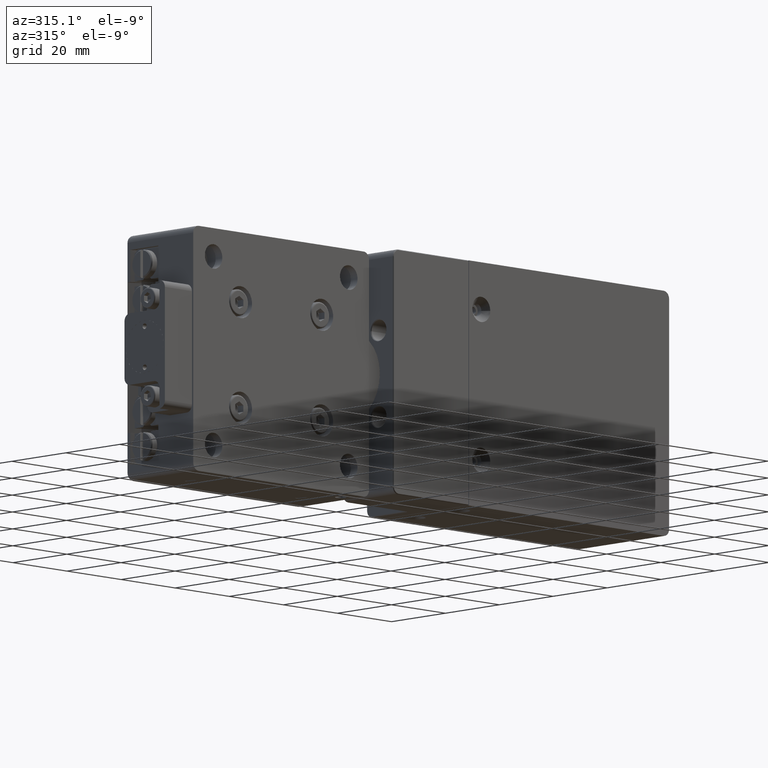
[diagram: clean part render]
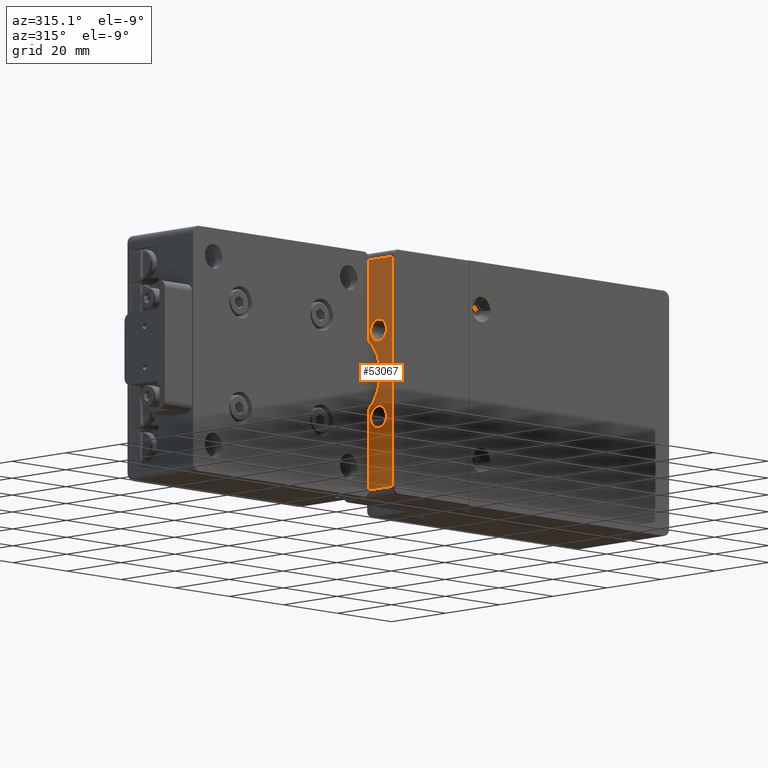
[diagram: same view with one face highlighted and labeled with its STEP entity id]
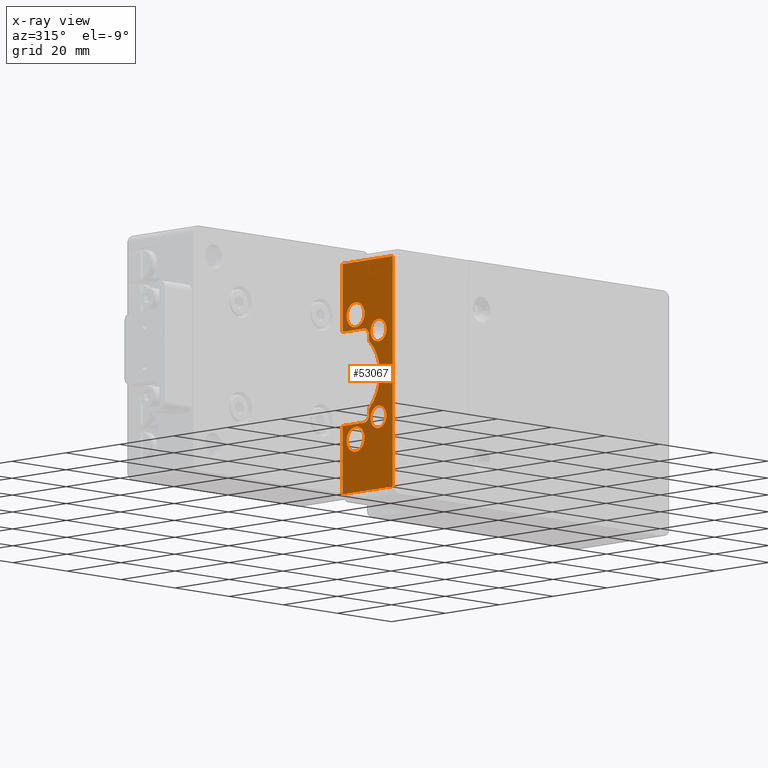
[diagram: x-ray of the same camera — body ghosted, the highlighted face saturated]
A machine part, auxiliary view. The second image highlights one B-rep face of the part: STEP entity #53067.
The next image is the same camera in x-ray: the body ghosted, the highlighted face saturated — about 0% of this face is hidden behind the body in this view.
In plain terms, the highlighted planar face has unit normal (1, 0, 0).
Its self-contained STEP definition (entity closure, byte-faithful):
#567 = AXIS2_PLACEMENT_3D ( 'NONE', #4153, #1064, #790 ) ;
#790 = DIRECTION ( 'NONE',  ( 0.000000000000000000, 1.000000000000000000, 0.000000000000000000 ) ) ;
#900 = ORIENTED_EDGE ( 'NONE', *, *, #53127, .T. ) ;
#1064 = DIRECTION ( 'NONE',  ( 1.000000000000000000, 0.000000000000000000, 0.000000000000000000 ) ) ;
#1322 = EDGE_CURVE ( 'NONE', #7329, #30953, #10742, .T. ) ;
#1376 = VERTEX_POINT ( 'NONE', #53005 ) ;
#1457 = LINE ( 'NONE', #14245, #19453 ) ;
#1556 = DIRECTION ( 'NONE',  ( 1.000000000000000000, 0.000000000000000000, 0.000000000000000000 ) ) ;
#1988 = ORIENTED_EDGE ( 'NONE', *, *, #1322, .T. ) ;
#2143 = LINE ( 'NONE', #6880, #11523 ) ;
#2549 = CARTESIAN_POINT ( 'NONE',  ( -118.1520614493393850, 11.74167847702479861, -12.50000000000000000 ) ) ;
#2590 = CARTESIAN_POINT ( 'NONE',  ( -118.1520614493393850, 0.9416784770247960124, 30.50000000000000000 ) ) ;
#2774 = CARTESIAN_POINT ( 'NONE',  ( -118.1520614493393850, 6.241678477024800387, -11.50000000000000000 ) ) ;
#3097 = ORIENTED_EDGE ( 'NONE', *, *, #11199, .T. ) ;
#3154 = LINE ( 'NONE', #20118, #31832 ) ;
#3672 = EDGE_CURVE ( 'NONE', #34985, #49633, #33072, .T. ) ;
#3777 = DIRECTION ( 'NONE',  ( 0.000000000000000000, 1.000000000000000000, 0.000000000000000000 ) ) ;
#3948 = EDGE_LOOP ( 'NONE', ( #27525, #9566 ) ) ;
#4038 = EDGE_CURVE ( 'NONE', #19085, #49757, #31202, .T. ) ;
#4153 = CARTESIAN_POINT ( 'NONE',  ( -118.1520614493393850, 11.74167847702479861, 10.50000000000000000 ) ) ;
#4569 = VERTEX_POINT ( 'NONE', #13841 ) ;
#4954 = LINE ( 'NONE', #30286, #29490 ) ;
#5898 = CIRCLE ( 'NONE', #567, 2.000000000000000000 ) ;
#6880 = CARTESIAN_POINT ( 'NONE',  ( -118.1520614493393850, 9.741678477024800387, -12.50000000000000000 ) ) ;
#6946 = DIRECTION ( 'NONE',  ( 0.000000000000000000, 1.000000000000000000, 0.000000000000000000 ) ) ;
#7325 = CARTESIAN_POINT ( 'NONE',  ( -118.1520614493393850, 19.54167847702480287, -30.50000000000000000 ) ) ;
#7329 = VERTEX_POINT ( 'NONE', #37481 ) ;
#7857 = CARTESIAN_POINT ( 'NONE',  ( -118.1520614493393850, 9.741678477024800387, 10.50000000000000000 ) ) ;
#7938 = DIRECTION ( 'NONE',  ( 0.000000000000000000, 0.000000000000000000, -1.000000000000000000 ) ) ;
#8249 = CIRCLE ( 'NONE', #11810, 2.949999999999999289 ) ;
#9059 = AXIS2_PLACEMENT_3D ( 'NONE', #30199, #37721, #3777 ) ;
#9566 = ORIENTED_EDGE ( 'NONE', *, *, #31515, .T. ) ;
#9692 = CARTESIAN_POINT ( 'NONE',  ( -118.1520614493393850, 9.191678477024799676, 11.50000000000000000 ) ) ;
#9779 = CARTESIAN_POINT ( 'NONE',  ( -118.1520614493393850, 0.7416784770247970560, -32.50000000000000000 ) ) ;
#9800 = EDGE_CURVE ( 'NONE', #48621, #4569, #8249, .T. ) ;
#10127 = VERTEX_POINT ( 'NONE', #39902 ) ;
#10742 = CIRCLE ( 'NONE', #24983, 3.300000000000000711 ) ;
#11007 = ORIENTED_EDGE ( 'NONE', *, *, #23868, .F. ) ;
#11199 = EDGE_CURVE ( 'NONE', #51487, #31302, #15514, .T. ) ;
#11523 = VECTOR ( 'NONE', #31396, 1000.000000000000000 ) ;
#11810 = AXIS2_PLACEMENT_3D ( 'NONE', #53023, #1556, #18525 ) ;
#12011 = CARTESIAN_POINT ( 'NONE',  ( -118.1520614493393850, 9.741678477024800387, 8.981953281905770581 ) ) ;
#12053 = LINE ( 'NONE', #7325, #35009 ) ;
#12273 = VECTOR ( 'NONE', #14565, 1000.000000000000000 ) ;
#12776 = EDGE_CURVE ( 'NONE', #1376, #10127, #23906, .T. ) ;
#13084 = VERTEX_POINT ( 'NONE', #47550 ) ;
#13481 = DIRECTION ( 'NONE',  ( 1.000000000000000000, 0.000000000000000000, 0.000000000000000000 ) ) ;
#13841 = CARTESIAN_POINT ( 'NONE',  ( -118.1520614493393850, 3.291678477024789995, -11.50000000000000000 ) ) ;
#14007 = DIRECTION ( 'NONE',  ( 1.000000000000000000, 0.000000000000000000, 0.000000000000000000 ) ) ;
#14245 = CARTESIAN_POINT ( 'NONE',  ( -118.1520614493393850, 0.7416784770247970560, 30.50000000000000000 ) ) ;
#14487 = CARTESIAN_POINT ( 'NONE',  ( -118.1520614493393850, 19.54167847702480287, 12.50000000000000000 ) ) ;
#14565 = DIRECTION ( 'NONE',  ( 0.000000000000000000, 0.000000000000000000, 1.000000000000000000 ) ) ;
#14848 = LINE ( 'NONE', #2590, #12273 ) ;
#14883 = EDGE_CURVE ( 'NONE', #51487, #49757, #2143, .T. ) ;
#15409 = CIRCLE ( 'NONE', #34095, 2.949999999999999289 ) ;
#15514 = CIRCLE ( 'NONE', #51040, 2.000000000000000000 ) ;
#15671 = ORIENTED_EDGE ( 'NONE', *, *, #41178, .T. ) ;
#15735 = LINE ( 'NONE', #49941, #16328 ) ;
#16259 = VERTEX_POINT ( 'NONE', #21607 ) ;
#16328 = VECTOR ( 'NONE', #7938, 1000.000000000000000 ) ;
#16549 = CARTESIAN_POINT ( 'NONE',  ( -118.1520614493393850, 11.74167847702479861, 12.50000000000000000 ) ) ;
#16897 = VERTEX_POINT ( 'NONE', #7857 ) ;
#17259 = DIRECTION ( 'NONE',  ( 1.000000000000000000, 0.000000000000000000, 0.000000000000000000 ) ) ;
#17325 = PLANE ( 'NONE',  #40789 ) ;
#17518 = ORIENTED_EDGE ( 'NONE', *, *, #46641, .F. ) ;
#17547 = VERTEX_POINT ( 'NONE', #16549 ) ;
#17653 = DIRECTION ( 'NONE',  ( 0.000000000000000000, 1.000000000000000000, 0.000000000000000000 ) ) ;
#18301 = DIRECTION ( 'NONE',  ( 0.000000000000000000, -1.000000000000000000, 0.000000000000000000 ) ) ;
#18302 = AXIS2_PLACEMENT_3D ( 'NONE', #47853, #17259, #26169 ) ;
#18400 = DIRECTION ( 'NONE',  ( 1.000000000000000000, 0.000000000000000000, 0.000000000000000000 ) ) ;
#18525 = DIRECTION ( 'NONE',  ( 0.000000000000000000, 1.000000000000000000, 0.000000000000000000 ) ) ;
#18753 = ORIENTED_EDGE ( 'NONE', *, *, #33460, .T. ) ;
#19085 = VERTEX_POINT ( 'NONE', #42069 ) ;
#19453 = VECTOR ( 'NONE', #38760, 1000.000000000000000 ) ;
#19658 = CARTESIAN_POINT ( 'NONE',  ( -118.1520614493393850, 11.74167847702479861, -10.50000000000000000 ) ) ;
#19683 = ORIENTED_EDGE ( 'NONE', *, *, #32284, .T. ) ;
#19719 = DIRECTION ( 'NONE',  ( 0.000000000000000000, 0.000000000000000000, 1.000000000000000000 ) ) ;
#19743 = CARTESIAN_POINT ( 'NONE',  ( -118.1520614493393850, 9.191678477024810334, -11.50000000000000000 ) ) ;
#20118 = CARTESIAN_POINT ( 'NONE',  ( -118.1520614493393850, 0.7416784770247970560, -30.50000000000000000 ) ) ;
#20134 = DIRECTION ( 'NONE',  ( 1.000000000000000000, 0.000000000000000000, 0.000000000000000000 ) ) ;
#21011 = CARTESIAN_POINT ( 'NONE',  ( -118.1520614493393850, 17.74167847702480216, 3.469446951953614820E-14 ) ) ;
#21210 = LINE ( 'NONE', #46267, #31569 ) ;
#21412 = AXIS2_PLACEMENT_3D ( 'NONE', #32108, #20134, #37108 ) ;
#21607 = CARTESIAN_POINT ( 'NONE',  ( -118.1520614493393850, 19.54167847702480287, 30.50000000000000000 ) ) ;
#23541 = VERTEX_POINT ( 'NONE', #49021 ) ;
#23797 = CARTESIAN_POINT ( 'NONE',  ( -118.1520614493393850, 11.44167847702479790, 16.50000000000000000 ) ) ;
#23868 = EDGE_CURVE ( 'NONE', #23541, #31302, #4954, .T. ) ;
#23906 = CIRCLE ( 'NONE', #54117, 3.300000000000000711 ) ;
#24512 = ORIENTED_EDGE ( 'NONE', *, *, #4038, .T. ) ;
#24983 = AXIS2_PLACEMENT_3D ( 'NONE', #27959, #31601, #28512 ) ;
#25252 = EDGE_CURVE ( 'NONE', #35046, #16897, #40616, .T. ) ;
#25328 = AXIS2_PLACEMENT_3D ( 'NONE', #21011, #13481, #17653 ) ;
#26169 = DIRECTION ( 'NONE',  ( 0.000000000000000000, 1.000000000000000000, 0.000000000000000000 ) ) ;
#26813 = CARTESIAN_POINT ( 'NONE',  ( -118.1520614493393850, 14.74167847702479861, -16.50000000000000000 ) ) ;
#26971 = ORIENTED_EDGE ( 'NONE', *, *, #44234, .T. ) ;
#27336 = EDGE_LOOP ( 'NONE', ( #43789, #39332 ) ) ;
#27525 = ORIENTED_EDGE ( 'NONE', *, *, #3672, .T. ) ;
#27959 = CARTESIAN_POINT ( 'NONE',  ( -118.1520614493393850, 14.74167847702479861, 16.50000000000000000 ) ) ;
#28512 = DIRECTION ( 'NONE',  ( 0.000000000000000000, 1.000000000000000000, 0.000000000000000000 ) ) ;
#29000 = CARTESIAN_POINT ( 'NONE',  ( -118.1520614493393850, 3.291678477024794880, 11.50000000000000000 ) ) ;
#29490 = VECTOR ( 'NONE', #18301, 1000.000000000000000 ) ;
#30132 = DIRECTION ( 'NONE',  ( 0.000000000000000000, 1.000000000000000000, 0.000000000000000000 ) ) ;
#30161 = ORIENTED_EDGE ( 'NONE', *, *, #9800, .T. ) ;
#30199 = CARTESIAN_POINT ( 'NONE',  ( -118.1520614493393850, 6.241678477024800387, 11.50000000000000000 ) ) ;
#30286 = CARTESIAN_POINT ( 'NONE',  ( -118.1520614493393850, 20.61376040322450010, -12.50000000000000000 ) ) ;
#30587 = AXIS2_PLACEMENT_3D ( 'NONE', #38264, #45787, #54677 ) ;
#30687 = FACE_BOUND ( 'NONE', #48046, .T. ) ;
#30953 = VERTEX_POINT ( 'NONE', #23797 ) ;
#31202 = CIRCLE ( 'NONE', #21412, 12.02811226911093812 ) ;
#31302 = VERTEX_POINT ( 'NONE', #2549 ) ;
#31396 = DIRECTION ( 'NONE',  ( 0.000000000000000000, 0.000000000000000000, 1.000000000000000000 ) ) ;
#31515 = EDGE_CURVE ( 'NONE', #49633, #34985, #15409, .T. ) ;
#31569 = VECTOR ( 'NONE', #38189, 1000.000000000000000 ) ;
#31601 = DIRECTION ( 'NONE',  ( 1.000000000000000000, 0.000000000000000000, 0.000000000000000000 ) ) ;
#31832 = VECTOR ( 'NONE', #37370, 1000.000000000000000 ) ;
#32108 = CARTESIAN_POINT ( 'NONE',  ( -118.1520614493393850, 17.74167847702480216, 3.469446951953614820E-14 ) ) ;
#32284 = EDGE_CURVE ( 'NONE', #16259, #49283, #15735, .T. ) ;
#32459 = ORIENTED_EDGE ( 'NONE', *, *, #14883, .F. ) ;
#33072 = CIRCLE ( 'NONE', #9059, 2.949999999999999289 ) ;
#33460 = EDGE_CURVE ( 'NONE', #35046, #19085, #46658, .T. ) ;
#33734 = EDGE_CURVE ( 'NONE', #23541, #33755, #12053, .T. ) ;
#33755 = VERTEX_POINT ( 'NONE', #41284 ) ;
#34095 = AXIS2_PLACEMENT_3D ( 'NONE', #42638, #18400, #39279 ) ;
#34985 = VERTEX_POINT ( 'NONE', #29000 ) ;
#35009 = VECTOR ( 'NONE', #45167, 1000.000000000000000 ) ;
#35046 = VERTEX_POINT ( 'NONE', #12011 ) ;
#35528 = ORIENTED_EDGE ( 'NONE', *, *, #35758, .T. ) ;
#35587 = AXIS2_PLACEMENT_3D ( 'NONE', #2774, #44791, #6946 ) ;
#35758 = EDGE_CURVE ( 'NONE', #17547, #16897, #5898, .T. ) ;
#36773 = CIRCLE ( 'NONE', #30587, 3.300000000000000711 ) ;
#37108 = DIRECTION ( 'NONE',  ( 0.000000000000000000, 1.000000000000000000, 0.000000000000000000 ) ) ;
#37198 = DIRECTION ( 'NONE',  ( 1.000000000000000000, 0.000000000000000000, 0.000000000000000000 ) ) ;
#37370 = DIRECTION ( 'NONE',  ( 0.000000000000000000, -1.000000000000000000, 0.000000000000000000 ) ) ;
#37481 = CARTESIAN_POINT ( 'NONE',  ( -118.1520614493393850, 18.04167847702479932, 16.50000000000000000 ) ) ;
#37721 = DIRECTION ( 'NONE',  ( 1.000000000000000000, 0.000000000000000000, 0.000000000000000000 ) ) ;
#38189 = DIRECTION ( 'NONE',  ( 0.000000000000000000, 1.000000000000000000, 0.000000000000000000 ) ) ;
#38229 = VECTOR ( 'NONE', #19719, 1000.000000000000000 ) ;
#38264 = CARTESIAN_POINT ( 'NONE',  ( -118.1520614493393850, 14.74167847702479861, -16.50000000000000000 ) ) ;
#38760 = DIRECTION ( 'NONE',  ( 0.000000000000000000, 1.000000000000000000, 0.000000000000000000 ) ) ;
#39084 = CARTESIAN_POINT ( 'NONE',  ( -118.1520614493393850, 9.741678477024800387, -10.50000000000000000 ) ) ;
#39279 = DIRECTION ( 'NONE',  ( 0.000000000000000000, 1.000000000000000000, 0.000000000000000000 ) ) ;
#39332 = ORIENTED_EDGE ( 'NONE', *, *, #42311, .T. ) ;
#39902 = CARTESIAN_POINT ( 'NONE',  ( -118.1520614493393850, 11.44167847702479790, -16.50000000000000000 ) ) ;
#40616 = LINE ( 'NONE', #40882, #38229 ) ;
#40789 = AXIS2_PLACEMENT_3D ( 'NONE', #9779, #52360, #30132 ) ;
#40882 = CARTESIAN_POINT ( 'NONE',  ( -118.1520614493393850, 9.741678477024800387, -12.50000000000000000 ) ) ;
#41178 = EDGE_CURVE ( 'NONE', #4569, #48621, #48880, .T. ) ;
#41284 = CARTESIAN_POINT ( 'NONE',  ( -118.1520614493393850, 19.54167847702480287, -30.50000000000000000 ) ) ;
#41403 = CIRCLE ( 'NONE', #18302, 3.300000000000000711 ) ;
#42069 = CARTESIAN_POINT ( 'NONE',  ( -118.1520614493393850, 5.713566207913859607, 3.616748843855130093E-14 ) ) ;
#42311 = EDGE_CURVE ( 'NONE', #10127, #1376, #36773, .T. ) ;
#42638 = CARTESIAN_POINT ( 'NONE',  ( -118.1520614493393850, 6.241678477024800387, 11.50000000000000000 ) ) ;
#42848 = EDGE_LOOP ( 'NONE', ( #46341, #45949, #900, #19683, #17518, #35528, #43526, #18753, #24512, #32459, #3097, #11007, #53978 ) ) ;
#43219 = FACE_OUTER_BOUND ( 'NONE', #42848, .T. ) ;
#43526 = ORIENTED_EDGE ( 'NONE', *, *, #25252, .F. ) ;
#43759 = FACE_BOUND ( 'NONE', #49603, .T. ) ;
#43789 = ORIENTED_EDGE ( 'NONE', *, *, #12776, .T. ) ;
#43883 = CARTESIAN_POINT ( 'NONE',  ( -118.1520614493393850, 0.9416784770247960124, -30.50000000000000000 ) ) ;
#44234 = EDGE_CURVE ( 'NONE', #30953, #7329, #41403, .T. ) ;
#44791 = DIRECTION ( 'NONE',  ( 1.000000000000000000, 0.000000000000000000, 0.000000000000000000 ) ) ;
#45024 = CARTESIAN_POINT ( 'NONE',  ( -118.1520614493393850, 9.741678477024800387, -8.981953281905699527 ) ) ;
#45167 = DIRECTION ( 'NONE',  ( 0.000000000000000000, 0.000000000000000000, -1.000000000000000000 ) ) ;
#45787 = DIRECTION ( 'NONE',  ( 1.000000000000000000, 0.000000000000000000, 0.000000000000000000 ) ) ;
#45949 = ORIENTED_EDGE ( 'NONE', *, *, #50784, .T. ) ;
#46267 = CARTESIAN_POINT ( 'NONE',  ( -118.1520614493393850, 20.61376040322450010, 12.50000000000000000 ) ) ;
#46341 = ORIENTED_EDGE ( 'NONE', *, *, #51028, .T. ) ;
#46641 = EDGE_CURVE ( 'NONE', #17547, #49283, #21210, .T. ) ;
#46658 = CIRCLE ( 'NONE', #25328, 12.02811226911093812 ) ;
#47102 = FACE_BOUND ( 'NONE', #3948, .T. ) ;
#47550 = CARTESIAN_POINT ( 'NONE',  ( -118.1520614493393850, 0.9416784770247960124, 30.50000000000000000 ) ) ;
#47572 = VERTEX_POINT ( 'NONE', #43883 ) ;
#47658 = FACE_BOUND ( 'NONE', #27336, .T. ) ;
#47853 = CARTESIAN_POINT ( 'NONE',  ( -118.1520614493393850, 14.74167847702479861, 16.50000000000000000 ) ) ;
#47954 = DIRECTION ( 'NONE',  ( 0.000000000000000000, 1.000000000000000000, 0.000000000000000000 ) ) ;
#48046 = EDGE_LOOP ( 'NONE', ( #1988, #26971 ) ) ;
#48621 = VERTEX_POINT ( 'NONE', #19743 ) ;
#48880 = CIRCLE ( 'NONE', #35587, 2.949999999999999289 ) ;
#49021 = CARTESIAN_POINT ( 'NONE',  ( -118.1520614493393850, 19.54167847702480287, -12.50000000000000000 ) ) ;
#49283 = VERTEX_POINT ( 'NONE', #14487 ) ;
#49603 = EDGE_LOOP ( 'NONE', ( #15671, #30161 ) ) ;
#49633 = VERTEX_POINT ( 'NONE', #9692 ) ;
#49715 = DIRECTION ( 'NONE',  ( 0.000000000000000000, 1.000000000000000000, 0.000000000000000000 ) ) ;
#49757 = VERTEX_POINT ( 'NONE', #45024 ) ;
#49941 = CARTESIAN_POINT ( 'NONE',  ( -118.1520614493393850, 19.54167847702480287, 12.50000000000000000 ) ) ;
#50784 = EDGE_CURVE ( 'NONE', #47572, #13084, #14848, .T. ) ;
#51028 = EDGE_CURVE ( 'NONE', #33755, #47572, #3154, .T. ) ;
#51040 = AXIS2_PLACEMENT_3D ( 'NONE', #19658, #37198, #49715 ) ;
#51487 = VERTEX_POINT ( 'NONE', #39084 ) ;
#52360 = DIRECTION ( 'NONE',  ( 1.000000000000000000, 0.000000000000000000, 0.000000000000000000 ) ) ;
#53005 = CARTESIAN_POINT ( 'NONE',  ( -118.1520614493393850, 18.04167847702479932, -16.50000000000000000 ) ) ;
#53023 = CARTESIAN_POINT ( 'NONE',  ( -118.1520614493393850, 6.241678477024800387, -11.50000000000000000 ) ) ;
#53067 = ADVANCED_FACE ( 'NONE', ( #47658, #30687, #47102, #43759, #43219 ), #17325, .F. ) ;
#53127 = EDGE_CURVE ( 'NONE', #13084, #16259, #1457, .T. ) ;
#53978 = ORIENTED_EDGE ( 'NONE', *, *, #33734, .T. ) ;
#54117 = AXIS2_PLACEMENT_3D ( 'NONE', #26813, #14007, #47954 ) ;
#54677 = DIRECTION ( 'NONE',  ( 0.000000000000000000, 1.000000000000000000, 0.000000000000000000 ) ) ;